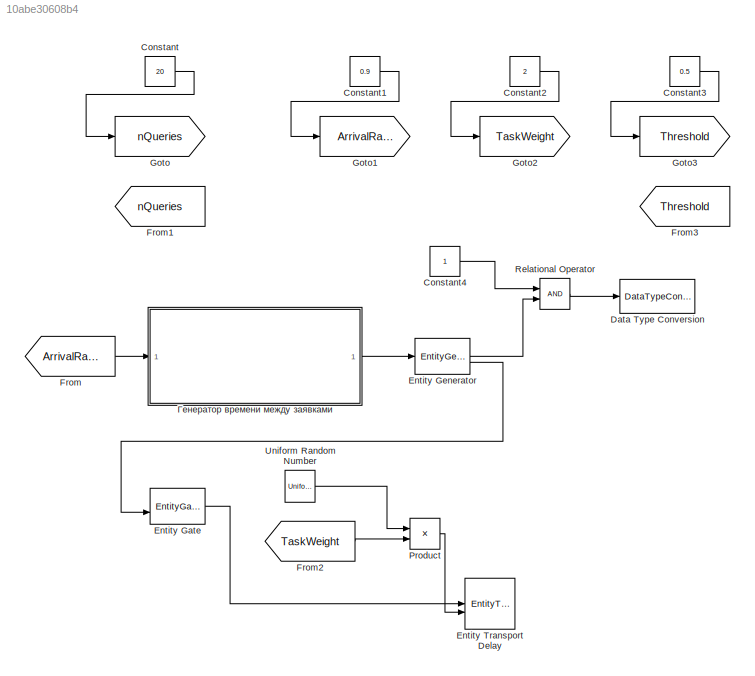
MODEL slx_10abe30608b4
KIND model
CONFIG AbsTol = auto
CONFIG EnableMultiTasking = off
CONFIG FixedStep = auto
CONFIG MaxStep = auto
CONFIG MinStep = auto
CONFIG RelTol = 1e-3
CONFIG SampleTimeConstraint = Unconstrained
CONFIG SolverName = VariableStepAuto
CONFIG StartTime = 0.0
CONFIG StopTime = 10.0
BLOCK [Constant] Constant
  Value = 20
BLOCK [Constant] Constant1
  Value = 0.9
BLOCK [Constant] Constant2
  Value = 2
BLOCK [Constant] Constant3
  Value = 0.5
BLOCK [Constant] Constant4
BLOCK [DataTypeConversion] Data Type Conversion
  OutDataTypeStr = double
  RndMeth = Floor
  SaturateOnIntegerOverflow = off
BLOCK [EntityGate] Entity Gate
  InputPortMap = u0,u1
  InputPortMessageModes = m,m
  OutputPortMap = o0
  OutputPortMessageModes = m
BLOCK [EntityGenerator] Entity Generator
  EntityType = Structured
  EntityTypeName = Entity
  InputPortMap = u1
  NumberEntitiesDeparted = on
  OutputPortMap = o0,o3
  OutputPortMessageModes = n,m
  TimeSource = Signal port
BLOCK [EntityTransportDelay] Entity Transport Delay
  InputPortMessageModes = m,n
  OutputPortMessageModes = m
BLOCK [From] From
  GotoTag = ArrivalRate
BLOCK [From] From1
  GotoTag = nQueries
BLOCK [From] From2
  GotoTag = TaskWeight
BLOCK [From] From3
  GotoTag = Threshold
BLOCK [Goto] Goto
  GotoTag = nQueries
BLOCK [Goto] Goto1
  GotoTag = ArrivalRate
BLOCK [Goto] Goto2
  GotoTag = TaskWeight
BLOCK [Goto] Goto3
  GotoTag = Threshold
BLOCK [Product] Product
BLOCK [RelationalOperator] Relational Operator
  InputSameDT = off
  OutDataTypeStr = boolean
  RndMeth = Simplest
BLOCK [UniformRandomNumber] Uniform Random Number
  SampleTime = 0.1
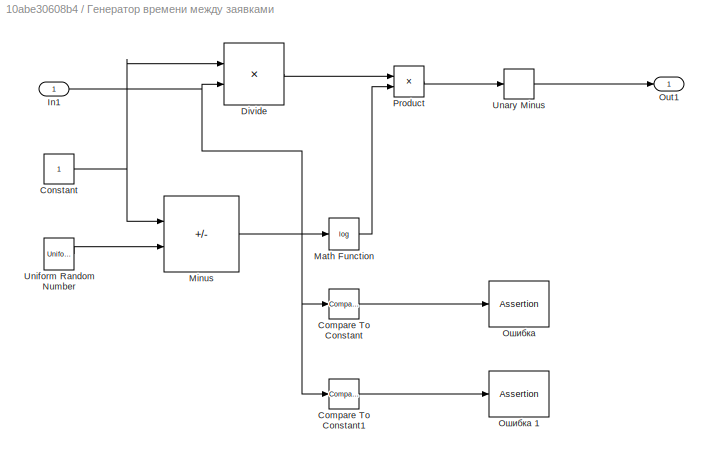
BLOCK [SubSystem] Генератор времени между заявками
BLOCK [Reference] Генератор времени между заявками/Compare To Constant  REF=simulink/Logic and Bit
Operations/Compare
To Constant
  SourceBlock = simulink/Logic and Bit\nOperations/Compare\nTo Constant
  SourceType = Compare To Constant
BLOCK [Reference] Генератор времени между заявками/Compare To Constant1  REF=simulink/Logic and Bit
Operations/Compare
To Constant
  SourceBlock = simulink/Logic and Bit\nOperations/Compare\nTo Constant
  SourceType = Compare To Constant
BLOCK [Constant] Генератор времени между заявками/Constant
BLOCK [Product] Генератор времени между заявками/Divide
  Inputs = */
BLOCK [Inport] Генератор времени между заявками/In1
BLOCK [Math] Генератор времени между заявками/Math Function
  Operator = log
BLOCK [Sum] Генератор времени между заявками/Minus
  IconShape = rectangular
  Inputs = +-
BLOCK [Outport] Генератор времени между заявками/Out1
BLOCK [Product] Генератор времени между заявками/Product
BLOCK [UnaryMinus] Генератор времени между заявками/Unary Minus
BLOCK [UniformRandomNumber] Генератор времени между заявками/Uniform Random Number
  SampleTime = 0.1
BLOCK [Assertion] Генератор времени между заявками/Ошибка
BLOCK [Assertion] Генератор времени между заявками/Ошибка 1
LINE Constant1:1 -> Goto1:1
LINE Constant2:1 -> Goto2:1
LINE Constant3:1 -> Goto3:1
LINE Constant4:1 -> Relational Operator:1
LINE Constant:1 -> Goto:1
LINE Entity Gate:1 -> Entity Transport Delay:1
LINE Entity Generator:1 -> Relational Operator:2
LINE Entity Generator:2 -> Entity Gate:2
LINE From2:1 -> Product:2
LINE From:1 -> Генератор времени между заявками:1
LINE Product:1 -> Entity Transport Delay:2
LINE Relational Operator:1 -> Data Type Conversion:1
LINE Uniform Random Number:1 -> Product:1
LINE Генератор времени между заявками/Compare To Constant1:1 -> Генератор времени между заявками/Ошибка 1:1
LINE Генератор времени между заявками/Compare To Constant:1 -> Генератор времени между заявками/Ошибка:1
NET Генератор времени между заявками/Constant:1 -> Генератор времени между заявками/Divide:1, Генератор времени между заявками/Minus:1
LINE Генератор времени между заявками/Divide:1 -> Генератор времени между заявками/Product:1
NET Генератор времени между заявками/In1:1 -> Генератор времени между заявками/Compare To Constant1:1, Генератор времени между заявками/Compare To Constant:1, Генератор времени между заявками/Divide:2
LINE Генератор времени между заявками/Math Function:1 -> Генератор времени между заявками/Product:2
LINE Генератор времени между заявками/Minus:1 -> Генератор времени между заявками/Math Function:1
LINE Генератор времени между заявками/Product:1 -> Генератор времени между заявками/Unary Minus:1
LINE Генератор времени между заявками/Unary Minus:1 -> Генератор времени между заявками/Out1:1
LINE Генератор времени между заявками/Uniform Random Number:1 -> Генератор времени между заявками/Minus:2
LINE Генератор времени между заявками:1 -> Entity Generator:1
note: NET lines group one-source signal fan-out (src -> all destinations, sorted); 1:1 wires keep LINE
